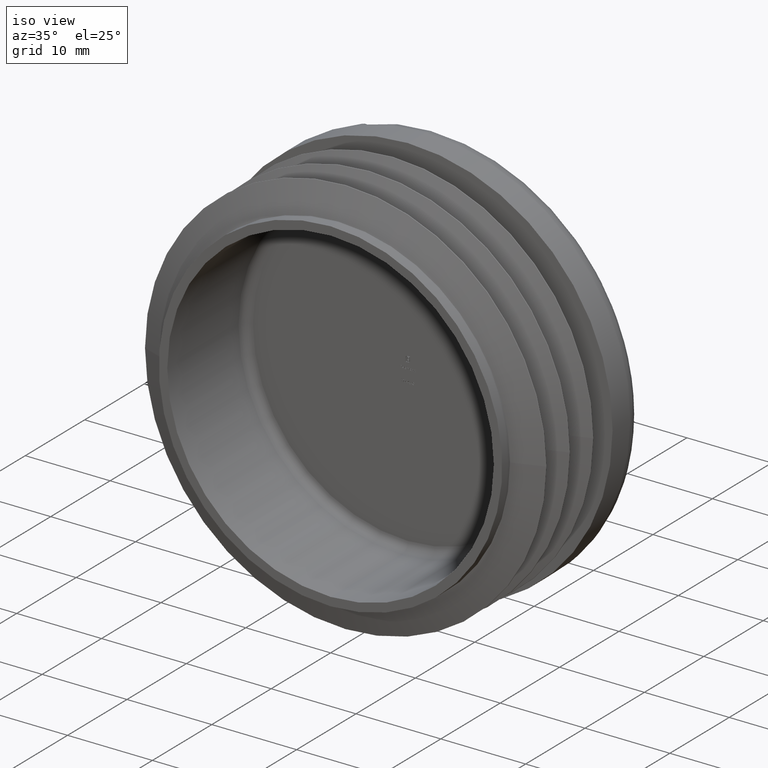
[diagram: clean part render]
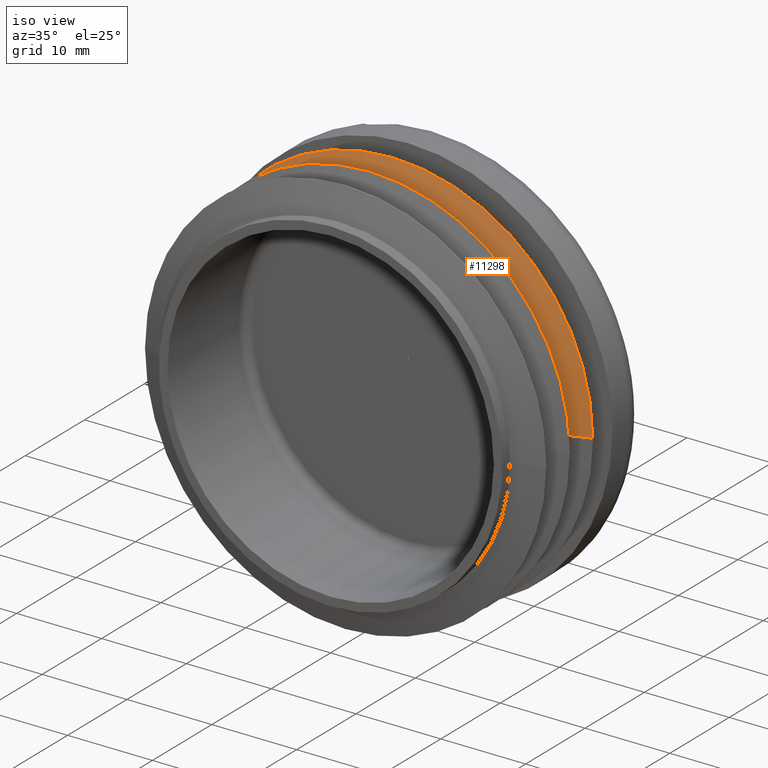
[diagram: same view with one face highlighted and labeled with its STEP entity id]
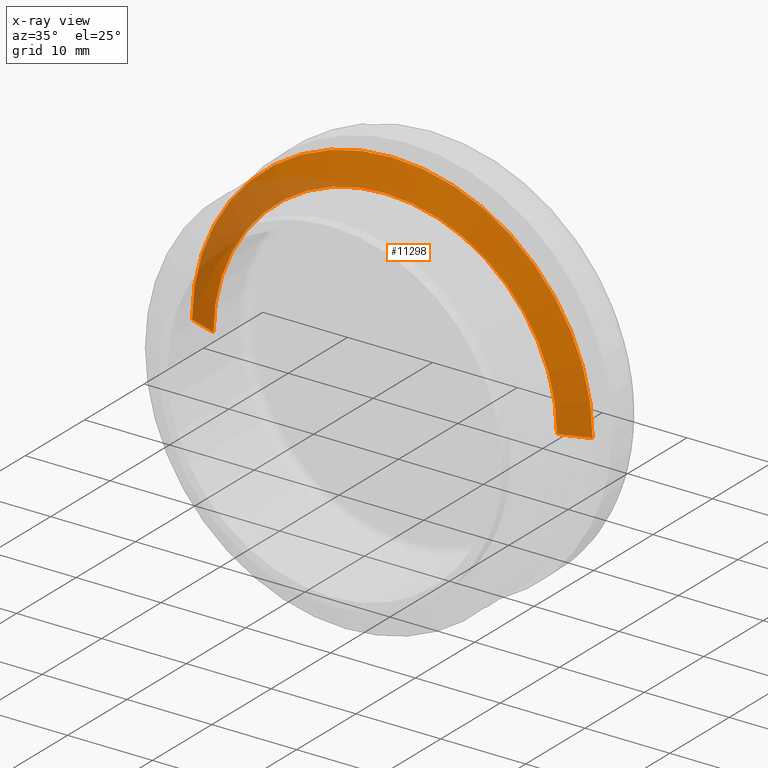
[diagram: x-ray of the same camera — body ghosted, the highlighted face saturated]
A machine part, iso view. The second image highlights one B-rep face of the part: STEP entity #11298.
The next image is the same camera in x-ray: the body ghosted, the highlighted face saturated — about 21% of this face is hidden behind the body in this view.
In plain terms, the highlighted conical surface has half-angle 70.339 deg.
Its self-contained STEP definition (entity closure, byte-faithful):
#127 = CARTESIAN_POINT ( 'NONE',  ( 23.61682275238631590, 10.40291502360516773, 2.892226638974041700E-15 ) ) ;
#217 = VERTEX_POINT ( 'NONE', #8169 ) ;
#380 = DIRECTION ( 'NONE',  ( 1.000000000000000000, 1.050376080074602809E-14, 0.000000000000000000 ) ) ;
#469 = EDGE_CURVE ( 'NONE', #217, #6897, #11933, .T. ) ;
#653 = DIRECTION ( 'NONE',  ( -0.9416995279065807356, 0.3364550477263237860, 0.000000000000000000 ) ) ;
#815 = CARTESIAN_POINT ( 'NONE',  ( -9.636488495207273990E-14, 9.200000000000214229, 0.000000000000000000 ) ) ;
#1741 = DIRECTION ( 'NONE',  ( -1.000000000000000000, -1.045117353428002079E-14, 0.000000000000000000 ) ) ;
#1879 = VECTOR ( 'NONE', #6680, 1000.000000000000227 ) ;
#2266 = CARTESIAN_POINT ( 'NONE',  ( 2.479909768271169262E-15, 9.200000000000214229, 20.25000000000000355 ) ) ;
#2802 = CARTESIAN_POINT ( 'NONE',  ( -9.636488495207273990E-14, 9.200000000000214229, 0.000000000000000000 ) ) ;
#3611 = CIRCLE ( 'NONE', #3698, 20.25000000000000355 ) ;
#3634 = ORIENTED_EDGE ( 'NONE', *, *, #10959, .F. ) ;
#3698 = AXIS2_PLACEMENT_3D ( 'NONE', #2802, #6761, #1741 ) ;
#3837 = EDGE_CURVE ( 'NONE', #9644, #217, #9779, .T. ) ;
#4610 = CARTESIAN_POINT ( 'NONE',  ( -20.25000000000019895, 9.200000000000038369, 0.000000000000000000 ) ) ;
#4641 = CARTESIAN_POINT ( 'NONE',  ( -9.636488495207309331E-14, 9.200000000000249756, 0.000000000000000000 ) ) ;
#4757 = CARTESIAN_POINT ( 'NONE',  ( -23.61682275238653261, 10.40291502360467035, 0.000000000000000000 ) ) ;
#5187 = VERTEX_POINT ( 'NONE', #4757 ) ;
#5243 = CARTESIAN_POINT ( 'NONE',  ( -1.089647510234623453E-13, 10.40291502360491904, 0.000000000000000000 ) ) ;
#5629 = CONICAL_SURFACE ( 'NONE', #7673, 20.25000000000009948, 1.227646392833293021 ) ;
#5903 = ORIENTED_EDGE ( 'NONE', *, *, #469, .T. ) ;
#5933 = VECTOR ( 'NONE', #653, 1000.000000000000114 ) ;
#6053 = AXIS2_PLACEMENT_3D ( 'NONE', #815, #8764, #7663 ) ;
#6236 = CIRCLE ( 'NONE', #10447, 23.61682275238642248 ) ;
#6480 = DIRECTION ( 'NONE',  ( -1.000000000000000000, -1.045117353427997188E-14, 0.000000000000000000 ) ) ;
#6638 = CARTESIAN_POINT ( 'NONE',  ( 20.25000000000000355, 9.200000000000461142, 2.479909768273402527E-15 ) ) ;
#6680 = DIRECTION ( 'NONE',  ( 0.9416995279065737412, 0.3364550477263434924, 1.153249312609363416E-16 ) ) ;
#6761 = DIRECTION ( 'NONE',  ( -1.047444401652940007E-14, 1.000000000000000000, 0.000000000000000000 ) ) ;
#6897 = VERTEX_POINT ( 'NONE', #127 ) ;
#7108 = EDGE_CURVE ( 'NONE', #11364, #9644, #3611, .T. ) ;
#7544 = EDGE_LOOP ( 'NONE', ( #9971, #5903, #10353, #3634, #9627 ) ) ;
#7663 = DIRECTION ( 'NONE',  ( -1.000000000000000000, -1.045117353428002079E-14, 0.000000000000000000 ) ) ;
#7673 = AXIS2_PLACEMENT_3D ( 'NONE', #4641, #12306, #6480 ) ;
#8169 = CARTESIAN_POINT ( 'NONE',  ( 20.24999999999990763, 9.200000000000427391, 2.686068203623716789E-15 ) ) ;
#8706 = FACE_OUTER_BOUND ( 'NONE', #7544, .T. ) ;
#8764 = DIRECTION ( 'NONE',  ( -1.047444401652940007E-14, 1.000000000000000000, 0.000000000000000000 ) ) ;
#9627 = ORIENTED_EDGE ( 'NONE', *, *, #7108, .T. ) ;
#9644 = VERTEX_POINT ( 'NONE', #2266 ) ;
#9779 = CIRCLE ( 'NONE', #6053, 20.25000000000000355 ) ;
#9971 = ORIENTED_EDGE ( 'NONE', *, *, #3837, .T. ) ;
#10353 = ORIENTED_EDGE ( 'NONE', *, *, #11661, .T. ) ;
#10447 = AXIS2_PLACEMENT_3D ( 'NONE', #5243, #12048, #380 ) ;
#10959 = EDGE_CURVE ( 'NONE', #11364, #5187, #12343, .T. ) ;
#11298 = ADVANCED_FACE ( 'NONE', ( #8706 ), #5629, .T. ) ;
#11364 = VERTEX_POINT ( 'NONE', #12558 ) ;
#11661 = EDGE_CURVE ( 'NONE', #6897, #5187, #6236, .T. ) ;
#11933 = LINE ( 'NONE', #6638, #1879 ) ;
#12048 = DIRECTION ( 'NONE',  ( 1.047444401652940007E-14, -1.000000000000000000, -0.000000000000000000 ) ) ;
#12306 = DIRECTION ( 'NONE',  ( -1.047444401652940007E-14, 1.000000000000000000, 0.000000000000000000 ) ) ;
#12343 = LINE ( 'NONE', #4610, #5933 ) ;
#12558 = CARTESIAN_POINT ( 'NONE',  ( -20.25000000000009948, 9.200000000000002842, 0.000000000000000000 ) ) ;